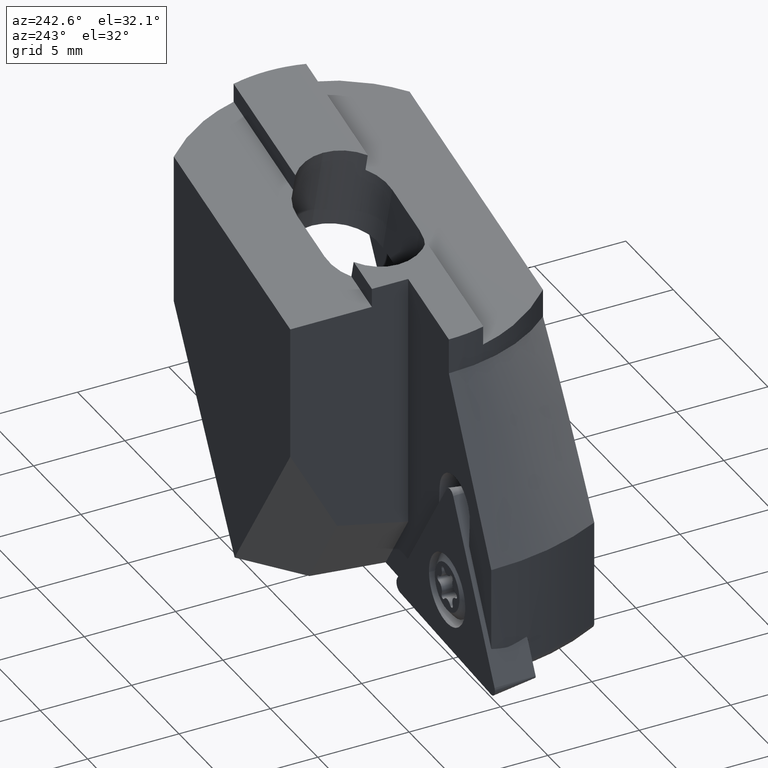
[diagram: clean part render]
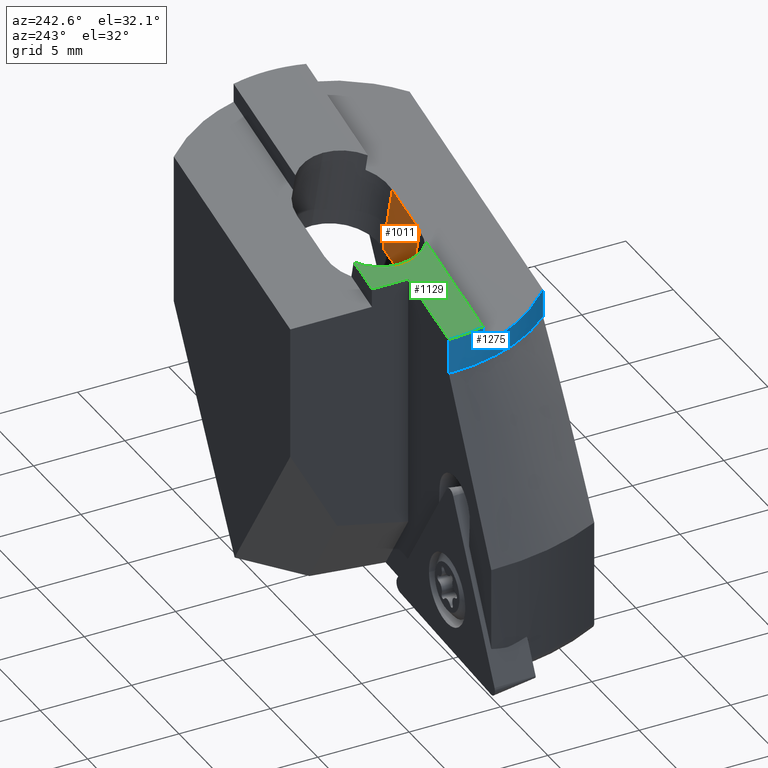
[diagram: same view with three faces highlighted in distinct colors, each labeled with its STEP entity id]
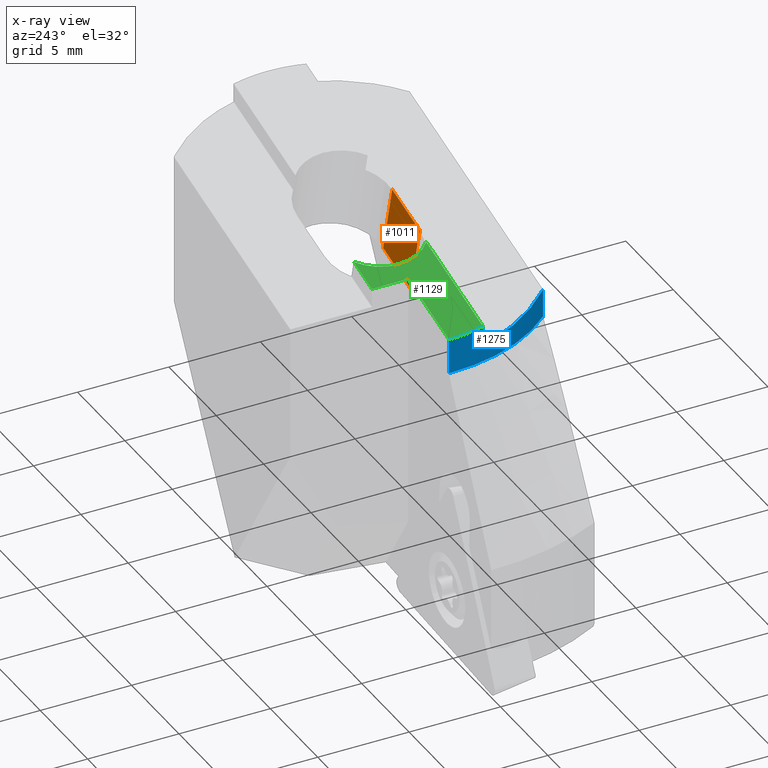
[diagram: x-ray of the same camera — body ghosted, the three highlighted faces saturated]
A machine part, auxiliary view with three faces highlighted in distinct colors.
The next image is the same camera in x-ray (body ghosted, the three faces saturated) — at least one of them is partly hidden behind the body in this view.
Their STEP definitions:

[orange] entity #1011 — the highlighted planar face has unit normal (-0, -1, -0).
#1011=ADVANCED_FACE('NONE',(#2527),#2528,.F.);
#1233=EDGE_CURVE('NONE',#1271,#2169,#2774,.T.);
#1271=VERTEX_POINT('NONE',#2816);
#1717=VERTEX_POINT('NONE',#3304);
#1761=EDGE_CURVE('NONE',#2139,#2169,#3355,.F.);
#1819=EDGE_CURVE('NONE',#1717,#1271,#3417,.F.);
#2111=EDGE_CURVE('NONE',#2139,#1717,#3738,.T.);
#2139=VERTEX_POINT('NONE',#3770);
#2169=VERTEX_POINT('NONE',#3802);
#2527=FACE_OUTER_BOUND('',#4252,.T.);
#2528=PLANE('',#4253);
#2774=LINE('',#4580,#4581);
#2816=CARTESIAN_POINT('',(-1.45380557193916,-2.6,-3.77417049627607));
#3304=CARTESIAN_POINT('',(-0.486117989540516,-2.6,-7.65535340138006));
#3355=LINE('',#5750,#5751);
#3417=LINE('',#5851,#5852);
#3738=LINE('',#6301,#6302);
#3770=CARTESIAN_POINT('',(2.41506623202472,-2.6,-6.93200693353707));
#3802=CARTESIAN_POINT('',(1.44737864962608,-2.6,-3.05082402843309));
#4252=EDGE_LOOP('',(#6831,#6832,#6833,#6834));
#4253=AXIS2_PLACEMENT_3D('',#6835,#6836,#6837);
#4580=CARTESIAN_POINT('',(-8.91831210301434,-2.6,-5.63528100187886));
#4581=VECTOR('',#7139,1.0);
#5750=CARTESIAN_POINT('',(7.07385128884989,-2.6,-25.6173732128938));
#5751=VECTOR('',#7823,1.0);
#5851=CARTESIAN_POINT('',(4.17266706728466,-2.6,-26.3407196807367));
#5852=VECTOR('',#7888,1.0);
#6301=CARTESIAN_POINT('',(-0.486117989540513,-2.6,-7.65535340138006));
#6302=VECTOR('',#8294,1.0);
#6831=ORIENTED_EDGE('',*,*,#1761,.F.);
#6832=ORIENTED_EDGE('',*,*,#2111,.T.);
#6833=ORIENTED_EDGE('',*,*,#1819,.T.);
#6834=ORIENTED_EDGE('',*,*,#1233,.T.);
#6835=CARTESIAN_POINT('',(4.17266706728466,-2.6,-26.3407196807367));
#6836=DIRECTION('',(-1.40735349081182E-016,-1.0,-3.50892635158479E-017));
#6837=DIRECTION('',(-1.0,1.40735349081182E-016,1.22464679914735E-016));
#7139=DIRECTION('',(0.970295726275998,-1.45043768894382E-016,0.241921895599661));
#7823=DIRECTION('',(0.241921895599661,0.0,-0.970295726275998));
#7888=DIRECTION('',(0.241921895599661,0.0,-0.970295726275998));
#8294=DIRECTION('',(-0.970295726275998,1.45043768894382E-016,-0.241921895599661));

[blue] entity #1275 — the highlighted cylindrical surface (partial cylindrical patch) has radius 9.55 mm, axis along (0, -0, 1).
#955=EDGE_CURVE('NONE',#2237,#2081,#2467,.T.);
#1071=EDGE_CURVE('NONE',#1075,#2237,#2592,.T.);
#1075=VERTEX_POINT('NONE',#2596);
#1223=VERTEX_POINT('NONE',#2763);
#1275=ADVANCED_FACE('NONE',(#2821),#2822,.T.);
#1465=EDGE_CURVE('NONE',#1223,#1599,#3038,.F.);
#1599=VERTEX_POINT('NONE',#3182);
#1671=EDGE_CURVE('NONE',#1223,#2081,#3256,.T.);
#1901=EDGE_CURVE('NONE',#2155,#1599,#3505,.T.);
#2073=EDGE_CURVE('NONE',#2155,#1075,#3696,.T.);
#2081=VERTEX_POINT('NONE',#3706);
#2155=VERTEX_POINT('NONE',#3787);
#2237=VERTEX_POINT('NONE',#3878);
#2467=LINE('',#4171,#4172);
#2592=ELLIPSE('',#4338,9.84236016029151,9.55);
#2596=CARTESIAN_POINT('',(-9.55,0.0,-4.76216485430461));
#2763=CARTESIAN_POINT('',(-7.04272674466361,-6.45,-5.16764505031938));
#2821=FACE_OUTER_BOUND('',#4644,.T.);
#2822=CYLINDRICAL_SURFACE('',#4645,9.55);
#3038=LINE('',#5327,#5328);
#3182=CARTESIAN_POINT('',(-7.04272674466361,-6.45,-6.70750493533695));
#3256=ELLIPSE('',#5624,9.84236016029151,9.55);
#3505=CIRCLE('',#5968,9.55);
#3696=LINE('',#6248,#6249);
#3706=CARTESIAN_POINT('',(-9.34195877479664,-1.9825,-5.7409079804655));
#3787=CARTESIAN_POINT('',(-9.55,0.0,-6.70750493533696));
#3878=CARTESIAN_POINT('',(-9.34195877479664,-1.9825,-4.71029435111561));
#4171=CARTESIAN_POINT('',(-9.34195877479664,-1.9825,0.679583590823389));
#4172=VECTOR('',#6765,1.0);
#4338=AXIS2_PLACEMENT_3D('',#6899,#6900,#6901);
#4644=EDGE_LOOP('',(#7207,#7208,#7209,#7210,#7211,#7212));
#4645=AXIS2_PLACEMENT_3D('',#7213,#7214,#7215);
#5327=CARTESIAN_POINT('',(-7.0427267446636,-6.45,0.679583590823389));
#5328=VECTOR('',#7496,1.0);
#5624=AXIS2_PLACEMENT_3D('',#7696,#7697,#7698);
#5968=AXIS2_PLACEMENT_3D('',#7995,#7996,#7997);
#6248=CARTESIAN_POINT('',(-9.55,0.0,0.679583590823389));
#6249=VECTOR('',#8245,1.0);
#6765=DIRECTION('',(-1.22464679914735E-016,0.0,-1.0));
#6899=CARTESIAN_POINT('',(-2.91598497291808E-016,0.0,-2.38108242715231));
#6900=DIRECTION('',(-0.241921895599661,0.0,0.970295726275998));
#6901=DIRECTION('',(0.970295726275998,0.0,0.241921895599661));
#7207=ORIENTED_EDGE('',*,*,#955,.F.);
#7208=ORIENTED_EDGE('',*,*,#1071,.F.);
#7209=ORIENTED_EDGE('',*,*,#2073,.F.);
#7210=ORIENTED_EDGE('',*,*,#1901,.T.);
#7211=ORIENTED_EDGE('',*,*,#1465,.F.);
#7212=ORIENTED_EDGE('',*,*,#1671,.T.);
#7213=CARTESIAN_POINT('',(8.32249869254926E-017,0.0,0.679583590823388));
#7214=DIRECTION('',(1.22464679914735E-016,-0.0,1.0));
#7215=DIRECTION('',(1.0,0.0,-1.22464679914735E-016));
#7496=DIRECTION('',(1.22464679914735E-016,-0.0,1.0));
#7696=CARTESIAN_POINT('',(-4.17812265525907E-016,0.0,-3.4116960565022));
#7697=DIRECTION('',(0.241921895599661,-2.14902735866576E-019,-0.970295726275998));
#7698=DIRECTION('',(0.970295726275998,0.0,0.241921895599661));
#7995=CARTESIAN_POINT('',(-8.21432444932547E-016,0.0,-6.70750493533695));
#7996=DIRECTION('',(1.22464679914735E-016,-0.0,1.0));
#7997=DIRECTION('',(1.0,0.0,-1.22464679914735E-016));
#8245=DIRECTION('',(1.22464679914735E-016,-0.0,1.0));

[green] entity #1129 — the highlighted planar face has unit normal (0.2419, 0, -0.9703).
#863=EDGE_CURVE('NONE',#991,#1269,#2362,.T.);
#915=EDGE_CURVE('NONE',#1925,#1793,#2423,.F.);
#991=VERTEX_POINT('NONE',#2506);
#1071=EDGE_CURVE('NONE',#1075,#2237,#2592,.T.);
#1075=VERTEX_POINT('NONE',#2596);
#1101=VERTEX_POINT('NONE',#2626);
#1129=ADVANCED_FACE('NONE',(#2657),#2658,.F.);
#1267=EDGE_CURVE('NONE',#1269,#1075,#2812,.T.);
#1269=VERTEX_POINT('NONE',#2814);
#1405=EDGE_CURVE('NONE',#1925,#991,#2968,.T.);
#1793=VERTEX_POINT('',#3388);
#1871=EDGE_CURVE('NONE',#1793,#1101,#3471,.F.);
#1925=VERTEX_POINT('NONE',#3533);
#2129=EDGE_CURVE('NONE',#2237,#1101,#3759,.T.);
#2237=VERTEX_POINT('NONE',#3878);
#2362=LINE('',#4033,#4034);
#2423=CIRCLE('',#4113,2.6);
#2506=CARTESIAN_POINT('',(-5.25,1.9825,-3.69005444207897));
#2592=ELLIPSE('',#4338,9.84236016029151,9.55);
#2596=CARTESIAN_POINT('',(-9.55,0.0,-4.76216485430461));
#2626=CARTESIAN_POINT('',(-3.32792920676876,-1.9825,-3.21082836987943));
#2657=FACE_OUTER_BOUND('',#4432,.T.);
#2658=PLANE('',#4433);
#2812=LINE('',#4634,#4635);
#2814=CARTESIAN_POINT('',(-5.25,0.0,-3.69005444207897));
#2968=LINE('',#4851,#4852);
#3388=CARTESIAN_POINT('',(-4.21849635585641,-4.6157626644082E-016,-3.43287169855919));
#3471=CIRCLE('',#5928,2.6);
#3533=CARTESIAN_POINT('',(-3.32792920676876,1.9825,-3.21082836987943));
#3759=LINE('',#6329,#6330);
#3878=CARTESIAN_POINT('',(-9.34195877479664,-1.9825,-4.71029435111561));
#4033=CARTESIAN_POINT('',(-5.25,-0.250000000000002,-3.69005444207897));
#4034=VECTOR('',#6616,1.0);
#4113=AXIS2_PLACEMENT_3D('',#6708,#6709,#6710);
#4338=AXIS2_PLACEMENT_3D('',#6899,#6900,#6901);
#4432=EDGE_LOOP('',(#6972,#6973,#6974,#6975,#6976,#6977,#6978));
#4433=AXIS2_PLACEMENT_3D('',#6979,#6980,#6981);
#4634=CARTESIAN_POINT('',(-2.21086627695213,0.0,-2.9323133005381));
#4635=VECTOR('',#7197,1.0);
#4851=CARTESIAN_POINT('',(-1.38711901023733,1.9825,-2.72693003968058));
#4852=VECTOR('',#7402,1.0);
#5928=AXIS2_PLACEMENT_3D('',#7937,#7938,#7939);
#6329=CARTESIAN_POINT('',(-3.5373702648446,-1.9825,-3.26304789060283));
#6330=VECTOR('',#8324,1.0);
#6616=DIRECTION('',(0.0,-1.0,-0.0));
#6708=CARTESIAN_POINT('',(-1.69572746753882,-1.43178614447002E-016,-2.80387477000007));
#6709=DIRECTION('',(0.241921895599661,0.0,-0.970295726275998));
#6710=DIRECTION('',(0.970295726275998,0.0,0.241921895599661));
#6899=CARTESIAN_POINT('',(-2.91598497291808E-016,0.0,-2.38108242715231));
#6900=DIRECTION('',(-0.241921895599661,0.0,0.970295726275998));
#6901=DIRECTION('',(0.970295726275998,0.0,0.241921895599661));
#6972=ORIENTED_EDGE('',*,*,#2129,.T.);
#6973=ORIENTED_EDGE('',*,*,#1871,.F.);
#6974=ORIENTED_EDGE('',*,*,#915,.F.);
#6975=ORIENTED_EDGE('',*,*,#1405,.T.);
#6976=ORIENTED_EDGE('',*,*,#863,.T.);
#6977=ORIENTED_EDGE('',*,*,#1267,.T.);
#6978=ORIENTED_EDGE('',*,*,#1071,.T.);
#6979=CARTESIAN_POINT('',(9.55,-15.5,-1.16953769318572E-015));
#6980=DIRECTION('',(0.241921895599661,0.0,-0.970295726275998));
#6981=DIRECTION('',(0.0,-1.0,0.0));
#7197=DIRECTION('',(-0.970295726275998,0.0,-0.241921895599661));
#7402=DIRECTION('',(-0.970295726275998,0.0,-0.241921895599661));
#7937=CARTESIAN_POINT('',(-1.69572746753882,-1.43178614447002E-016,-2.80387477000007));
#7938=DIRECTION('',(0.241921895599661,0.0,-0.970295726275998));
#7939=DIRECTION('',(0.970295726275998,0.0,0.241921895599661));
#8324=DIRECTION('',(0.970295726275998,0.0,0.241921895599661));